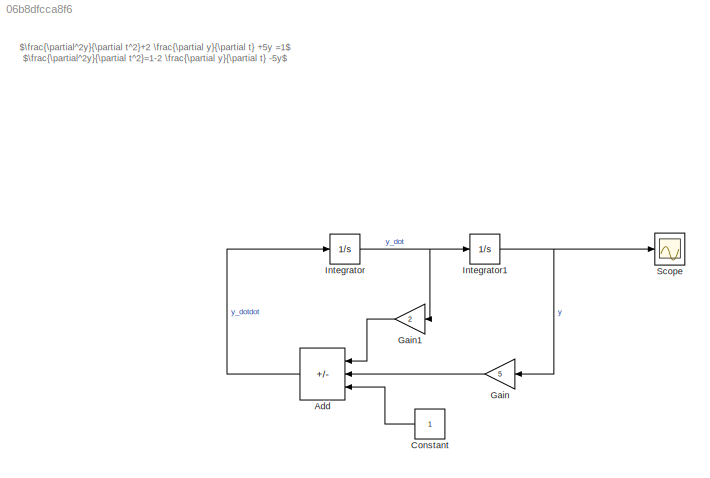
MODEL slx_06b8dfcca8f6
KIND model
CONFIG AbsTol = auto
CONFIG EnableMultiTasking = off
CONFIG FixedStep = auto
CONFIG MaxStep = 0.01
CONFIG MinStep = auto
CONFIG RelTol = 1e-3
CONFIG SampleTimeConstraint = Unconstrained
CONFIG SolverName = VariableStepAuto
CONFIG StartTime = 0.0
CONFIG StopTime = 25
BLOCK [Sum] Add
  IconShape = rectangular
  Inputs = --+
  NameLocation = top
BLOCK [Constant] Constant
  NameLocation = top
BLOCK [Gain] Gain
  Gain = 5
  NameLocation = top
BLOCK [Gain] Gain1
  Gain = 2
  NameLocation = top
BLOCK [Integrator] Integrator
BLOCK [Integrator] Integrator1
BLOCK [Scope] Scope
  Floating = off
  NumInputPorts = 1
  ScopeSpecificationString = Simulink.scopes.TimeScopeBlockCfg('CurrentConfiguration', extmgr.ConfigurationSet(extmgr.Configuration('Core','General UI',true),extmgr.Configuration('Core','Source UI',true),extmgr.Configuration('Sources','WiredSimulink',true),extmgr.Configuration('Visuals','Time Domain',true,'SerializedDisplays',{struct('MinYLimReal','-0.02973','MaxYLimReal','0.26755','YLabelReal','','MinYLimMag','0.00000','MaxY...<+1340ch>
ANNOTATION (root): $\frac{\partial^2y}{\partial t^2}+2 \frac{\partial y}{\partial t} +5y =1$ $\frac{\partial^2y}{\partial t^2}=1-2 \frac{\partial y}{\partial t} -5y$
LINE Add:1 -> Integrator:1
LINE Constant:1 -> Add:3
LINE Gain1:1 -> Add:1
LINE Gain:1 -> Add:2
NET Integrator1:1 -> Gain:1, Scope:1
NET Integrator:1 -> Gain1:1, Integrator1:1
note: NET lines group one-source signal fan-out (src -> all destinations, sorted); 1:1 wires keep LINE
